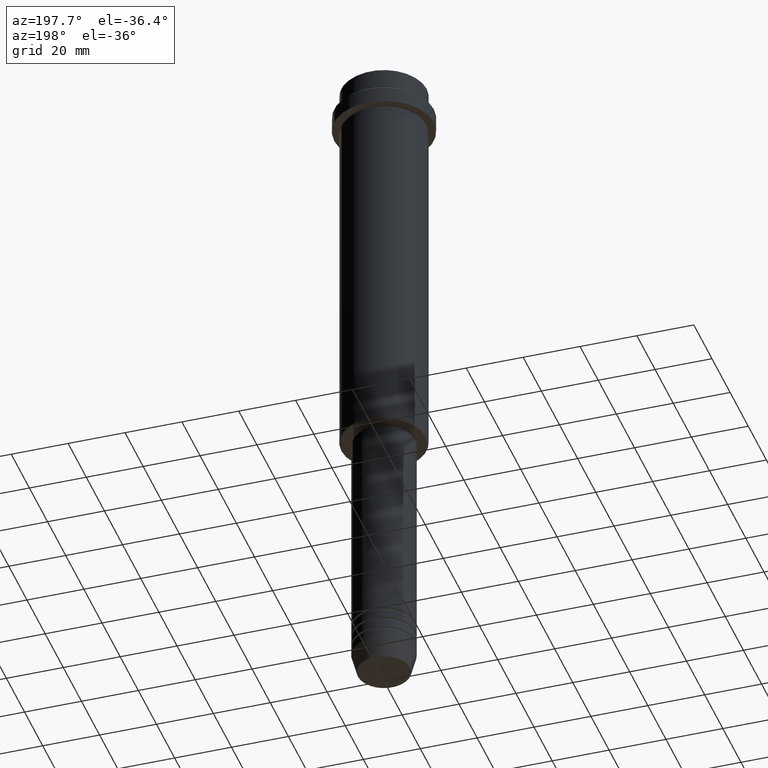
[diagram: clean part render]
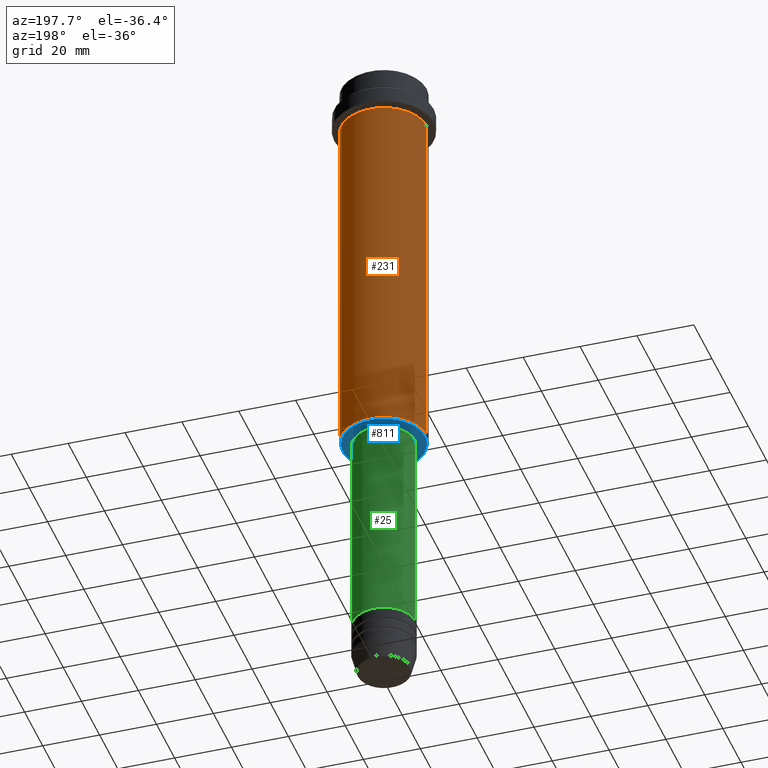
[diagram: same view with three faces highlighted in distinct colors, each labeled with its STEP entity id]
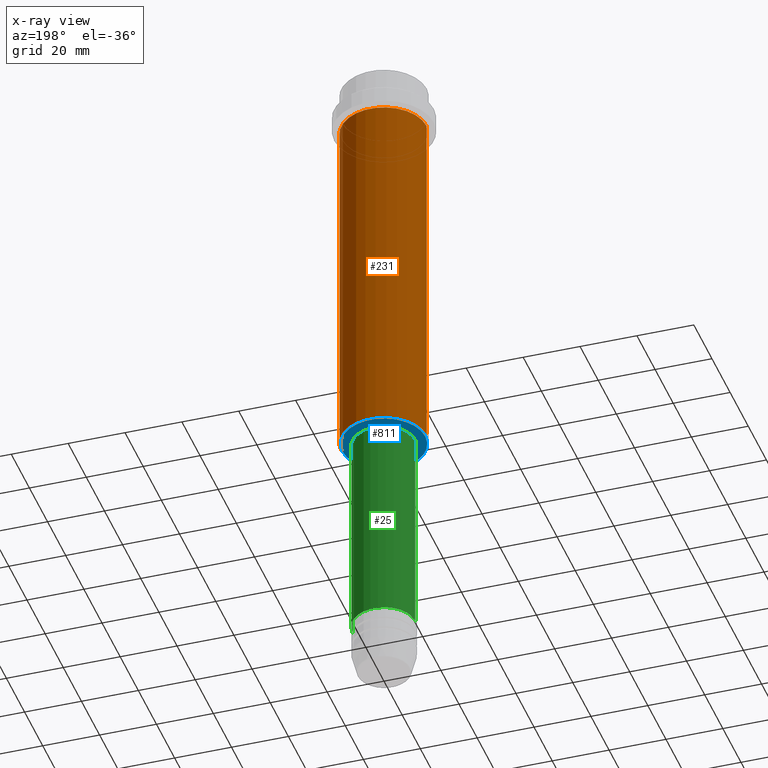
[diagram: x-ray of the same camera — body ghosted, the three highlighted faces saturated]
A machine part, auxiliary view with three faces highlighted in distinct colors.
The next image is the same camera in x-ray (body ghosted, the three faces saturated) — at least one of them is partly hidden behind the body in this view.
Their STEP definitions:

[orange] entity #231 — the highlighted cylindrical surface (partial cylindrical patch) has radius 15 mm, axis along (-0, -0, 1).
#39 = FACE_OUTER_BOUND ( 'NONE', #1358, .T. ) ;
#64 = CARTESIAN_POINT ( 'NONE',  ( 15.00000000000000178, 0.000000000000000000, -16.00000000000000000 ) ) ;
#100 = CYLINDRICAL_SURFACE ( 'NONE', #843, 15.00000000000000000 ) ;
#144 = DIRECTION ( 'NONE',  ( -0.000000000000000000, -0.000000000000000000, 1.000000000000000000 ) ) ;
#146 = VERTEX_POINT ( 'NONE', #64 ) ;
#148 = CARTESIAN_POINT ( 'NONE',  ( -15.00000000000000000, 1.836970198721029589E-15, 0.000000000000000000 ) ) ;
#184 = CARTESIAN_POINT ( 'NONE',  ( 0.000000000000000000, 0.000000000000000000, -16.00000000000000000 ) ) ;
#208 = CARTESIAN_POINT ( 'NONE',  ( 15.00000000000000000, 0.000000000000000000, -144.5000000000000568 ) ) ;
#223 = CIRCLE ( 'NONE', #818, 15.00000000000000000 ) ;
#231 = ADVANCED_FACE ( 'NONE', ( #39 ), #100, .T. ) ;
#299 = DIRECTION ( 'NONE',  ( 1.000000000000000000, 0.000000000000000000, 0.000000000000000000 ) ) ;
#311 = EDGE_CURVE ( 'NONE', #329, #1193, #223, .T. ) ;
#329 = VERTEX_POINT ( 'NONE', #208 ) ;
#344 = LINE ( 'NONE', #789, #650 ) ;
#346 = ORIENTED_EDGE ( 'NONE', *, *, #757, .F. ) ;
#435 = DIRECTION ( 'NONE',  ( -0.000000000000000000, -0.000000000000000000, 1.000000000000000000 ) ) ;
#471 = CARTESIAN_POINT ( 'NONE',  ( 0.000000000000000000, 0.000000000000000000, -144.5000000000000568 ) ) ;
#532 = VECTOR ( 'NONE', #1364, 1000.000000000000000 ) ;
#540 = ORIENTED_EDGE ( 'NONE', *, *, #1052, .F. ) ;
#605 = AXIS2_PLACEMENT_3D ( 'NONE', #184, #1272, #299 ) ;
#650 = VECTOR ( 'NONE', #1336, 1000.000000000000000 ) ;
#686 = CARTESIAN_POINT ( 'NONE',  ( -15.00000000000000000, 1.836970198721029589E-15, -144.5000000000000568 ) ) ;
#712 = VERTEX_POINT ( 'NONE', #1084 ) ;
#757 = EDGE_CURVE ( 'NONE', #329, #146, #344, .T. ) ;
#765 = CARTESIAN_POINT ( 'NONE',  ( 0.000000000000000000, 0.000000000000000000, 0.000000000000000000 ) ) ;
#789 = CARTESIAN_POINT ( 'NONE',  ( 15.00000000000000000, 0.000000000000000000, 0.000000000000000000 ) ) ;
#807 = LINE ( 'NONE', #148, #532 ) ;
#818 = AXIS2_PLACEMENT_3D ( 'NONE', #471, #144, #1417 ) ;
#843 = AXIS2_PLACEMENT_3D ( 'NONE', #765, #435, #869 ) ;
#869 = DIRECTION ( 'NONE',  ( 1.000000000000000000, 0.000000000000000000, 0.000000000000000000 ) ) ;
#896 = ORIENTED_EDGE ( 'NONE', *, *, #311, .T. ) ;
#1052 = EDGE_CURVE ( 'NONE', #146, #712, #1412, .T. ) ;
#1084 = CARTESIAN_POINT ( 'NONE',  ( -15.00000000000000355, 1.836970198721029983E-15, -16.00000000000000000 ) ) ;
#1143 = ORIENTED_EDGE ( 'NONE', *, *, #1290, .T. ) ;
#1193 = VERTEX_POINT ( 'NONE', #686 ) ;
#1272 = DIRECTION ( 'NONE',  ( -0.000000000000000000, -0.000000000000000000, 1.000000000000000000 ) ) ;
#1290 = EDGE_CURVE ( 'NONE', #1193, #712, #807, .T. ) ;
#1336 = DIRECTION ( 'NONE',  ( -0.000000000000000000, -0.000000000000000000, 1.000000000000000000 ) ) ;
#1358 = EDGE_LOOP ( 'NONE', ( #896, #1143, #540, #346 ) ) ;
#1364 = DIRECTION ( 'NONE',  ( -0.000000000000000000, -0.000000000000000000, 1.000000000000000000 ) ) ;
#1412 = CIRCLE ( 'NONE', #605, 15.00000000000000178 ) ;
#1417 = DIRECTION ( 'NONE',  ( -1.000000000000000000, 0.000000000000000000, 0.000000000000000000 ) ) ;

[blue] entity #811 — the highlighted planar face has unit normal (0, 0, -1).
#27 = FACE_OUTER_BOUND ( 'NONE', #477, .T. ) ;
#32 = EDGE_CURVE ( 'NONE', #1278, #685, #736, .T. ) ;
#42 = AXIS2_PLACEMENT_3D ( 'NONE', #274, #1146, #163 ) ;
#61 = CIRCLE ( 'NONE', #431, 10.49999999999999289 ) ;
#106 = AXIS2_PLACEMENT_3D ( 'NONE', #1051, #506, #617 ) ;
#126 = FACE_BOUND ( 'NONE', #266, .T. ) ;
#163 = DIRECTION ( 'NONE',  ( -1.000000000000000000, 0.000000000000000000, 0.000000000000000000 ) ) ;
#171 = CARTESIAN_POINT ( 'NONE',  ( 10.49999999999999289, 0.000000000000000000, -145.0000000000000000 ) ) ;
#186 = CARTESIAN_POINT ( 'NONE',  ( 0.000000000000000000, 0.000000000000000000, -145.0000000000000000 ) ) ;
#266 = EDGE_LOOP ( 'NONE', ( #511, #1209 ) ) ;
#274 = CARTESIAN_POINT ( 'NONE',  ( 0.000000000000000000, 0.000000000000000000, -145.0000000000000284 ) ) ;
#350 = DIRECTION ( 'NONE',  ( -1.000000000000000000, 0.000000000000000000, -0.000000000000000000 ) ) ;
#354 = DIRECTION ( 'NONE',  ( 0.000000000000000000, 0.000000000000000000, -1.000000000000000000 ) ) ;
#363 = EDGE_CURVE ( 'NONE', #685, #1278, #61, .T. ) ;
#407 = CIRCLE ( 'NONE', #106, 14.50000000000003908 ) ;
#416 = DIRECTION ( 'NONE',  ( 1.000000000000000000, 0.000000000000000000, 0.000000000000000000 ) ) ;
#431 = AXIS2_PLACEMENT_3D ( 'NONE', #186, #726, #484 ) ;
#439 = CARTESIAN_POINT ( 'NONE',  ( -10.49999999999999289, 1.285879139104720042E-15, -145.0000000000000000 ) ) ;
#470 = EDGE_CURVE ( 'NONE', #778, #1155, #407, .T. ) ;
#473 = AXIS2_PLACEMENT_3D ( 'NONE', #1234, #640, #416 ) ;
#477 = EDGE_LOOP ( 'NONE', ( #724, #520 ) ) ;
#484 = DIRECTION ( 'NONE',  ( 1.000000000000000000, 0.000000000000000000, 0.000000000000000000 ) ) ;
#506 = DIRECTION ( 'NONE',  ( 0.000000000000000000, 0.000000000000000000, -1.000000000000000000 ) ) ;
#511 = ORIENTED_EDGE ( 'NONE', *, *, #32, .T. ) ;
#520 = ORIENTED_EDGE ( 'NONE', *, *, #470, .T. ) ;
#576 = PLANE ( 'NONE',  #1177 ) ;
#617 = DIRECTION ( 'NONE',  ( -1.000000000000000000, 0.000000000000000000, 0.000000000000000000 ) ) ;
#640 = DIRECTION ( 'NONE',  ( -0.000000000000000000, -0.000000000000000000, 1.000000000000000000 ) ) ;
#685 = VERTEX_POINT ( 'NONE', #439 ) ;
#724 = ORIENTED_EDGE ( 'NONE', *, *, #1306, .T. ) ;
#726 = DIRECTION ( 'NONE',  ( -0.000000000000000000, -0.000000000000000000, 1.000000000000000000 ) ) ;
#736 = CIRCLE ( 'NONE', #473, 10.49999999999999289 ) ;
#778 = VERTEX_POINT ( 'NONE', #1100 ) ;
#811 = ADVANCED_FACE ( 'NONE', ( #27, #126 ), #576, .T. ) ;
#895 = CARTESIAN_POINT ( 'NONE',  ( 14.50000000000003908, 0.000000000000000000, -145.0000000000000284 ) ) ;
#995 = CARTESIAN_POINT ( 'NONE',  ( 0.000000000000000000, 15.00000000000000000, -145.0000000000000284 ) ) ;
#1051 = CARTESIAN_POINT ( 'NONE',  ( 0.000000000000000000, 0.000000000000000000, -145.0000000000000284 ) ) ;
#1100 = CARTESIAN_POINT ( 'NONE',  ( -14.50000000000003908, 1.806354028742348168E-15, -145.0000000000000284 ) ) ;
#1146 = DIRECTION ( 'NONE',  ( 0.000000000000000000, 0.000000000000000000, -1.000000000000000000 ) ) ;
#1155 = VERTEX_POINT ( 'NONE', #895 ) ;
#1177 = AXIS2_PLACEMENT_3D ( 'NONE', #995, #354, #350 ) ;
#1209 = ORIENTED_EDGE ( 'NONE', *, *, #363, .T. ) ;
#1234 = CARTESIAN_POINT ( 'NONE',  ( 0.000000000000000000, 0.000000000000000000, -145.0000000000000000 ) ) ;
#1273 = CIRCLE ( 'NONE', #42, 14.50000000000003908 ) ;
#1278 = VERTEX_POINT ( 'NONE', #171 ) ;
#1306 = EDGE_CURVE ( 'NONE', #1155, #778, #1273, .T. ) ;

[green] entity #25 — the highlighted cylindrical surface (edge-blend (fillet) strip) has radius 11 mm, axis along (-0, -0, 1).
#9 = CYLINDRICAL_SURFACE ( 'NONE', #1361, 11.00000000000000000 ) ;
#12 = VERTEX_POINT ( 'NONE', #663 ) ;
#25 = ADVANCED_FACE ( 'NONE', ( #1197 ), #9, .T. ) ;
#26 = CARTESIAN_POINT ( 'NONE',  ( 11.00000000000000000, 0.000000000000000000, 0.000000000000000000 ) ) ;
#67 = VERTEX_POINT ( 'NONE', #840 ) ;
#70 = CARTESIAN_POINT ( 'NONE',  ( -11.00000000000000000, 1.347111479062088405E-15, -220.9999999999998863 ) ) ;
#156 = ORIENTED_EDGE ( 'NONE', *, *, #441, .T. ) ;
#180 = VECTOR ( 'NONE', #225, 1000.000000000000000 ) ;
#213 = ORIENTED_EDGE ( 'NONE', *, *, #1188, .F. ) ;
#217 = DIRECTION ( 'NONE',  ( 1.000000000000000000, 0.000000000000000000, 0.000000000000000000 ) ) ;
#225 = DIRECTION ( 'NONE',  ( -0.000000000000000000, -0.000000000000000000, 1.000000000000000000 ) ) ;
#229 = CIRCLE ( 'NONE', #1414, 11.00000000000000000 ) ;
#340 = CARTESIAN_POINT ( 'NONE',  ( 11.00000000000000000, 0.000000000000000000, -220.9999999999998863 ) ) ;
#345 = EDGE_CURVE ( 'NONE', #67, #12, #711, .T. ) ;
#376 = DIRECTION ( 'NONE',  ( -0.000000000000000000, -0.000000000000000000, 1.000000000000000000 ) ) ;
#441 = EDGE_CURVE ( 'NONE', #828, #12, #816, .T. ) ;
#442 = CARTESIAN_POINT ( 'NONE',  ( 0.000000000000000000, 0.000000000000000000, -146.0000000000000000 ) ) ;
#543 = EDGE_LOOP ( 'NONE', ( #919, #156, #943, #213 ) ) ;
#663 = CARTESIAN_POINT ( 'NONE',  ( -10.99999999999999822, 1.347111479062088207E-15, -146.0000000000000000 ) ) ;
#711 = CIRCLE ( 'NONE', #1036, 10.99999999999999822 ) ;
#776 = DIRECTION ( 'NONE',  ( -0.000000000000000000, -0.000000000000000000, 1.000000000000000000 ) ) ;
#810 = CARTESIAN_POINT ( 'NONE',  ( -11.00000000000000000, 1.347111479062088405E-15, 0.000000000000000000 ) ) ;
#816 = LINE ( 'NONE', #810, #1243 ) ;
#819 = DIRECTION ( 'NONE',  ( 1.000000000000000000, 0.000000000000000000, 0.000000000000000000 ) ) ;
#828 = VERTEX_POINT ( 'NONE', #70 ) ;
#840 = CARTESIAN_POINT ( 'NONE',  ( 10.99999999999999822, 0.000000000000000000, -146.0000000000000000 ) ) ;
#882 = CARTESIAN_POINT ( 'NONE',  ( 0.000000000000000000, 0.000000000000000000, 0.000000000000000000 ) ) ;
#919 = ORIENTED_EDGE ( 'NONE', *, *, #1401, .T. ) ;
#943 = ORIENTED_EDGE ( 'NONE', *, *, #345, .F. ) ;
#987 = DIRECTION ( 'NONE',  ( 1.000000000000000000, 0.000000000000000000, 0.000000000000000000 ) ) ;
#1025 = CARTESIAN_POINT ( 'NONE',  ( 0.000000000000000000, 0.000000000000000000, -220.9999999999998863 ) ) ;
#1036 = AXIS2_PLACEMENT_3D ( 'NONE', #442, #776, #987 ) ;
#1157 = DIRECTION ( 'NONE',  ( -0.000000000000000000, -0.000000000000000000, 1.000000000000000000 ) ) ;
#1188 = EDGE_CURVE ( 'NONE', #1241, #67, #1305, .T. ) ;
#1197 = FACE_OUTER_BOUND ( 'NONE', #543, .T. ) ;
#1241 = VERTEX_POINT ( 'NONE', #340 ) ;
#1243 = VECTOR ( 'NONE', #1347, 1000.000000000000000 ) ;
#1305 = LINE ( 'NONE', #26, #180 ) ;
#1347 = DIRECTION ( 'NONE',  ( -0.000000000000000000, -0.000000000000000000, 1.000000000000000000 ) ) ;
#1361 = AXIS2_PLACEMENT_3D ( 'NONE', #882, #1157, #217 ) ;
#1401 = EDGE_CURVE ( 'NONE', #1241, #828, #229, .T. ) ;
#1414 = AXIS2_PLACEMENT_3D ( 'NONE', #1025, #376, #819 ) ;